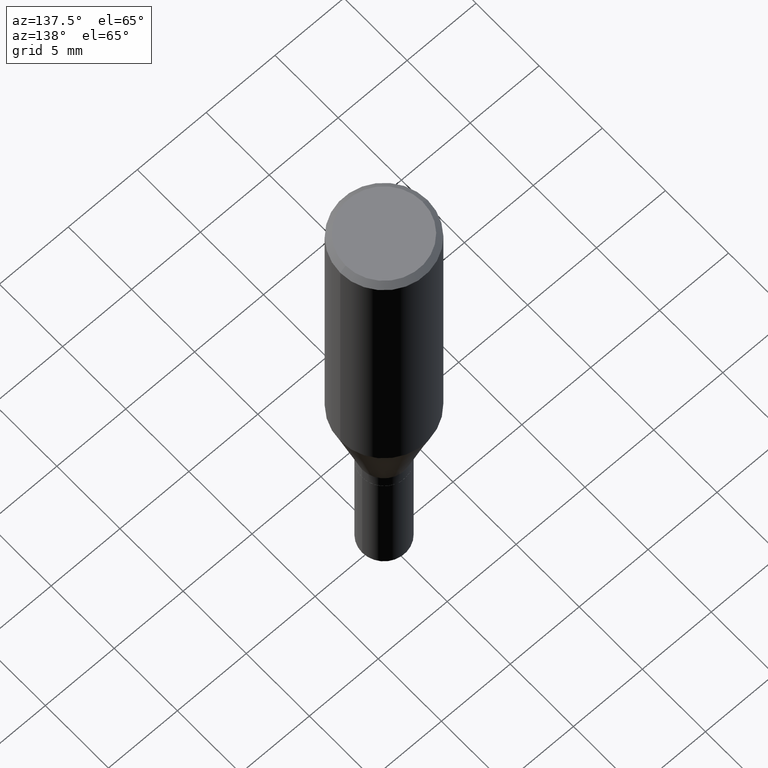
[diagram: clean part render]
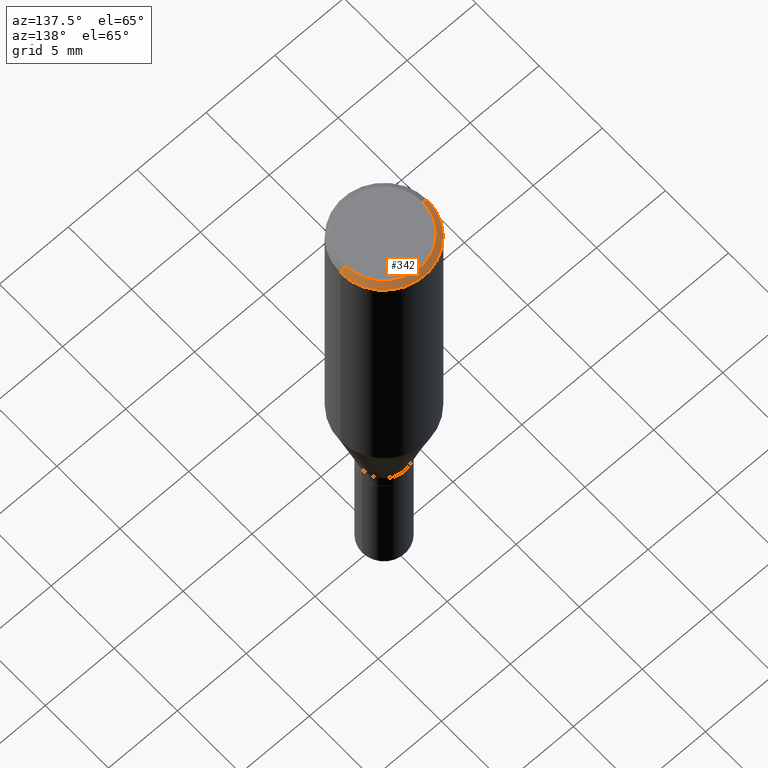
[diagram: same view with one face highlighted and labeled with its STEP entity id]
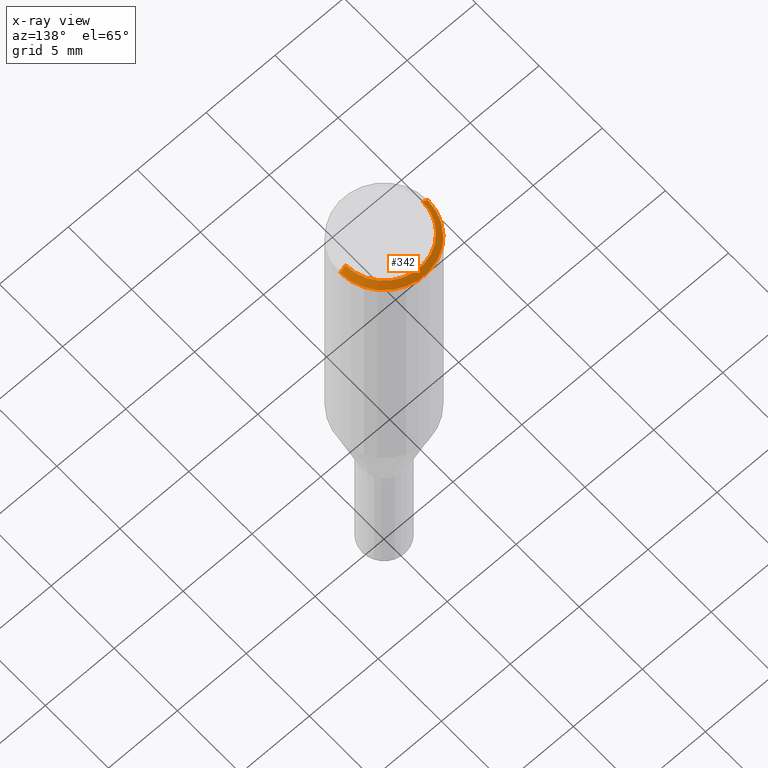
[diagram: x-ray of the same camera — body ghosted, the highlighted face saturated]
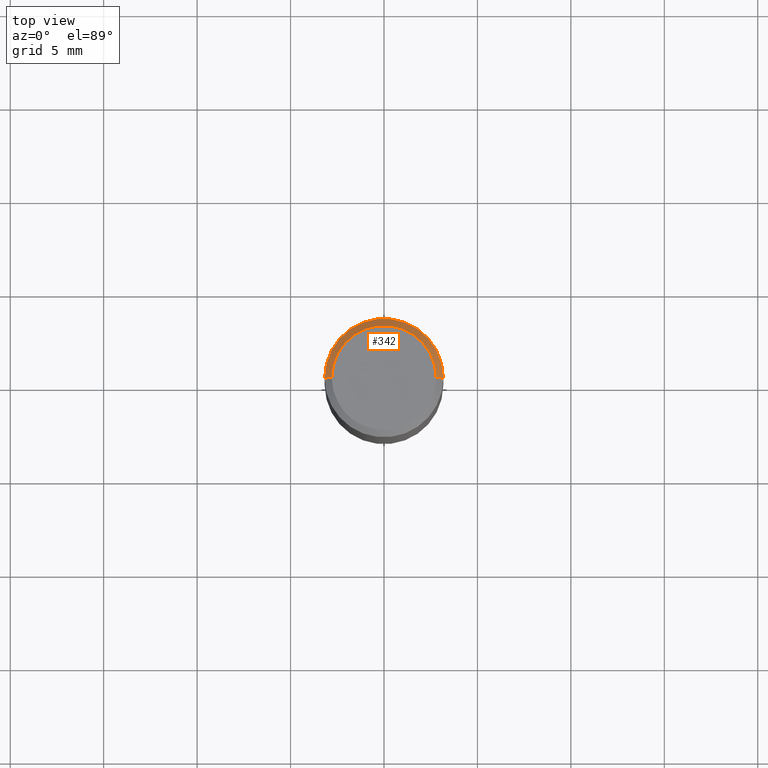
[diagram: same view with one face highlighted and labeled with its STEP entity id]
A machine part, auxiliary view. The second image highlights one B-rep face of the part: STEP entity #342.
The next image is the same camera in x-ray: the body ghosted, the highlighted face saturated — about 0% of this face is hidden behind the body in this view.
A second angle (top view) of the same face is appended — the face is thin or edge-on in the first view.
In plain terms, the highlighted conical surface has half-angle 45 deg.
Its self-contained STEP definition (entity closure, byte-faithful):
#7 = ORIENTED_EDGE ( 'NONE', *, *, #449, .F. ) ;
#33 = CARTESIAN_POINT ( 'NONE',  ( 0.1250000000000000000, -9.252425547934304180E-16, -0.01499999999999999944 ) ) ;
#40 = FACE_OUTER_BOUND ( 'NONE', #225, .T. ) ;
#77 = VERTEX_POINT ( 'NONE', #108 ) ;
#89 = DIRECTION ( 'NONE',  ( 1.000000000000000000, -6.982962677686266711E-15, 4.876001053725558154E-29 ) ) ;
#90 = EDGE_CURVE ( 'NONE', #91, #371, #209, .T. ) ;
#91 = VERTEX_POINT ( 'NONE', #33 ) ;
#97 = CIRCLE ( 'NONE', #253, 0.1100000000000000006 ) ;
#98 = CONICAL_SURFACE ( 'NONE', #268, 0.1250000000000000000, 0.7853981633974483900 ) ;
#108 = CARTESIAN_POINT ( 'NONE',  ( 0.1100000000000000006, -8.322946247794786836E-16, -7.674416657715788472E-18 ) ) ;
#130 = CARTESIAN_POINT ( 'NONE',  ( -0.1250000000000000000, 8.204981146281362596E-16, -0.01499999999999999944 ) ) ;
#132 = DIRECTION ( 'NONE',  ( 0.7071067811865475727, -7.319954787623256045E-15, -0.7071067811865474617 ) ) ;
#163 = LINE ( 'NONE', #341, #182 ) ;
#165 = LINE ( 'NONE', #130, #307 ) ;
#168 = CARTESIAN_POINT ( 'NONE',  ( -0.1100000000000000006, 7.943120045868128186E-16, -7.674416657726847932E-18 ) ) ;
#181 = CARTESIAN_POINT ( 'NONE',  ( -0.1250000000000000000, -6.266825026379885376E-16, -0.01499999999999999944 ) ) ;
#182 = VECTOR ( 'NONE', #132, 39.37007874015748143 ) ;
#209 = CIRCLE ( 'NONE', #312, 0.1250000000000000000 ) ;
#225 = EDGE_LOOP ( 'NONE', ( #287, #325, #254, #7 ) ) ;
#229 = CARTESIAN_POINT ( 'NONE',  ( 1.876754654212523840E-46, -2.679508254694119990E-32, -7.674416657721384454E-18 ) ) ;
#240 = EDGE_CURVE ( 'NONE', #77, #462, #97, .T. ) ;
#253 = AXIS2_PLACEMENT_3D ( 'NONE', #229, #381, #89 ) ;
#254 = ORIENTED_EDGE ( 'NONE', *, *, #90, .T. ) ;
#268 = AXIS2_PLACEMENT_3D ( 'NONE', #373, #433, #292 ) ;
#287 = ORIENTED_EDGE ( 'NONE', *, *, #240, .F. ) ;
#292 = DIRECTION ( 'NONE',  ( -1.000000000000000000, 6.982962677686266711E-15, 0.000000000000000000 ) ) ;
#307 = VECTOR ( 'NONE', #345, 39.37007874015748143 ) ;
#311 = CARTESIAN_POINT ( 'NONE',  ( 3.668203209277705088E-31, -5.237222008264718399E-17, -0.01499999999999999944 ) ) ;
#312 = AXIS2_PLACEMENT_3D ( 'NONE', #311, #422, #360 ) ;
#325 = ORIENTED_EDGE ( 'NONE', *, *, #441, .T. ) ;
#341 = CARTESIAN_POINT ( 'NONE',  ( 0.1250000000000000000, -9.099344698040885245E-16, -0.01499999999999999944 ) ) ;
#342 = ADVANCED_FACE ( 'NONE', ( #40 ), #98, .T. ) ;
#345 = DIRECTION ( 'NONE',  ( -0.7071067811865475727, 2.468850131082257455E-15, -0.7071067811865474617 ) ) ;
#360 = DIRECTION ( 'NONE',  ( 1.000000000000000000, -6.982962677686266711E-15, 0.000000000000000000 ) ) ;
#371 = VERTEX_POINT ( 'NONE', #181 ) ;
#373 = CARTESIAN_POINT ( 'NONE',  ( 3.668203209277705088E-31, -5.237222008264718399E-17, -0.01499999999999999944 ) ) ;
#381 = DIRECTION ( 'NONE',  ( -2.445468806185136597E-29, 3.491481338843145583E-15, 1.000000000000000000 ) ) ;
#422 = DIRECTION ( 'NONE',  ( -2.445468806185136597E-29, 3.491481338843145583E-15, 1.000000000000000000 ) ) ;
#433 = DIRECTION ( 'NONE',  ( 2.445468806185136597E-29, -3.491481338843145583E-15, -1.000000000000000000 ) ) ;
#441 = EDGE_CURVE ( 'NONE', #77, #91, #163, .T. ) ;
#449 = EDGE_CURVE ( 'NONE', #462, #371, #165, .T. ) ;
#462 = VERTEX_POINT ( 'NONE', #168 ) ;